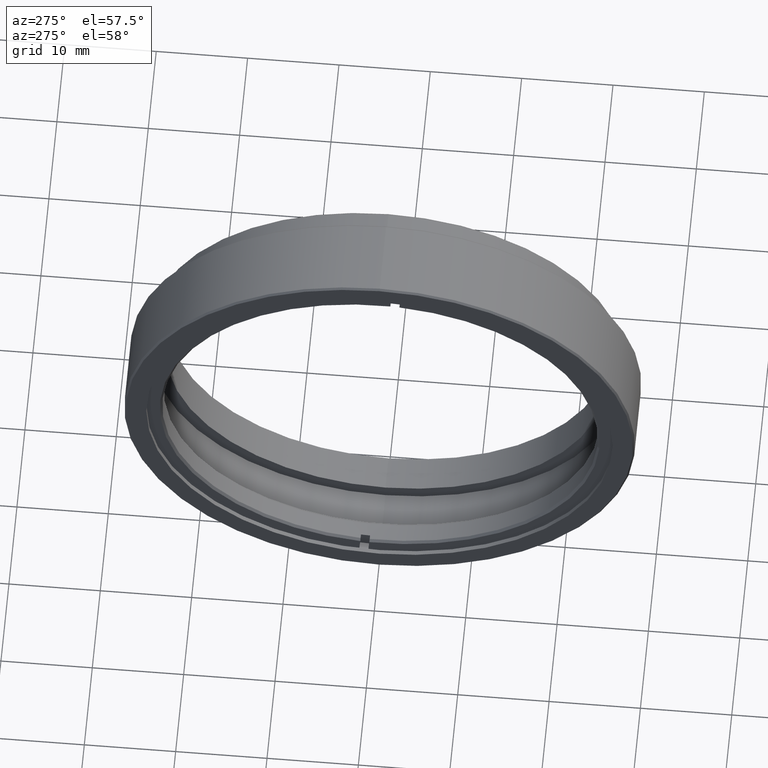
[diagram: clean part render]
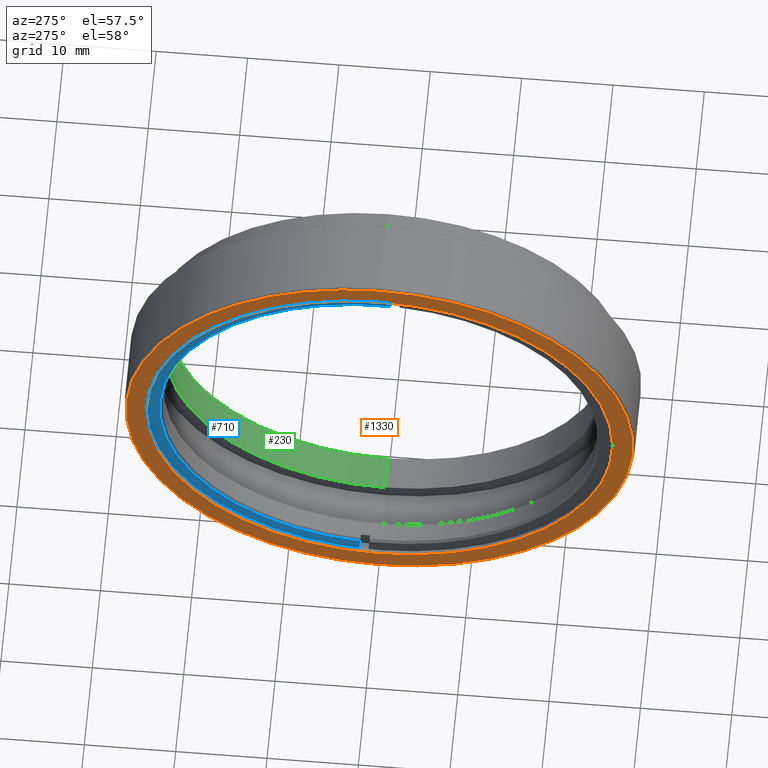
[diagram: same view with three faces highlighted in distinct colors, each labeled with its STEP entity id]
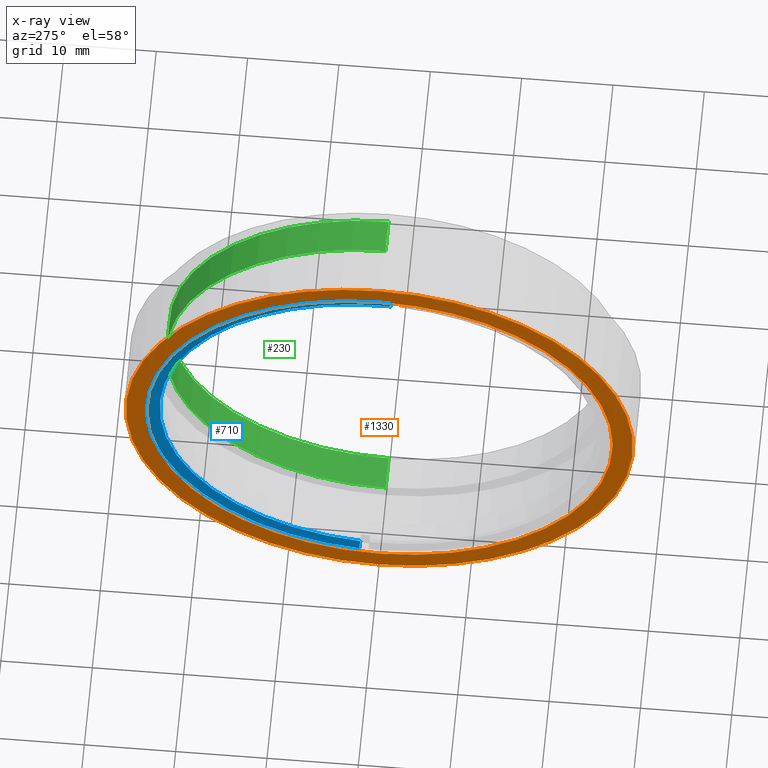
[diagram: x-ray of the same camera — body ghosted, the three highlighted faces saturated]
A machine part, auxiliary view with three faces highlighted in distinct colors.
The next image is the same camera in x-ray (body ghosted, the three faces saturated) — at least one of them is partly hidden behind the body in this view.
Their STEP definitions:

[orange] entity #1330 — the highlighted planar face has unit normal (-1, 0, 0).
#22 = AXIS2_PLACEMENT_3D ( 'NONE', #982, #748, #92 ) ;
#86 = CARTESIAN_POINT ( 'NONE',  ( -4.874000000000017430, -20.10857142857141611, 27.74999999999998579 ) ) ;
#92 = DIRECTION ( 'NONE',  ( 0.000000000000000000, 0.000000000000000000, 1.000000000000000000 ) ) ;
#105 = AXIS2_PLACEMENT_3D ( 'NONE', #752, #744, #876 ) ;
#167 = ORIENTED_EDGE ( 'NONE', *, *, #559, .F. ) ;
#187 = CIRCLE ( 'NONE', #105, 25.52700000000000102 ) ;
#240 = DIRECTION ( 'NONE',  ( -1.000000000000000000, 0.000000000000000000, 0.000000000000000000 ) ) ;
#250 = CARTESIAN_POINT ( 'NONE',  ( -4.874000000000017430, -20.10857142857141966, 0.000000000000000000 ) ) ;
#267 = AXIS2_PLACEMENT_3D ( 'NONE', #250, #1523, #1006 ) ;
#299 = ORIENTED_EDGE ( 'NONE', *, *, #1035, .T. ) ;
#351 = EDGE_CURVE ( 'NONE', #1170, #1253, #1645, .T. ) ;
#393 = CIRCLE ( 'NONE', #22, 27.74999999999998579 ) ;
#423 = AXIS2_PLACEMENT_3D ( 'NONE', #1656, #994, #746 ) ;
#502 = PLANE ( 'NONE',  #423 ) ;
#559 = EDGE_CURVE ( 'NONE', #1297, #615, #187, .T. ) ;
#615 = VERTEX_POINT ( 'NONE', #873 ) ;
#625 = AXIS2_PLACEMENT_3D ( 'NONE', #1359, #240, #1114 ) ;
#744 = DIRECTION ( 'NONE',  ( -1.000000000000000000, 0.000000000000000000, 0.000000000000000000 ) ) ;
#746 = DIRECTION ( 'NONE',  ( 0.000000000000000000, 0.000000000000000000, 1.000000000000000000 ) ) ;
#748 = DIRECTION ( 'NONE',  ( -1.000000000000000000, 0.000000000000000000, 0.000000000000000000 ) ) ;
#752 = CARTESIAN_POINT ( 'NONE',  ( -4.874000000000017430, -20.10857142857141966, 0.000000000000000000 ) ) ;
#845 = CARTESIAN_POINT ( 'NONE',  ( -4.874000000000017430, -20.10857142857141611, 25.52700000000000102 ) ) ;
#849 = EDGE_LOOP ( 'NONE', ( #1301, #167 ) ) ;
#873 = CARTESIAN_POINT ( 'NONE',  ( -4.874000000000017430, -20.10857142857141966, -25.52700000000000102 ) ) ;
#876 = DIRECTION ( 'NONE',  ( 0.000000000000000000, 0.000000000000000000, 1.000000000000000000 ) ) ;
#982 = CARTESIAN_POINT ( 'NONE',  ( -4.874000000000017430, -20.10857142857141966, 0.000000000000000000 ) ) ;
#994 = DIRECTION ( 'NONE',  ( -1.000000000000000000, 0.000000000000000000, 0.000000000000000000 ) ) ;
#1006 = DIRECTION ( 'NONE',  ( 0.000000000000000000, 0.000000000000000000, 1.000000000000000000 ) ) ;
#1035 = EDGE_CURVE ( 'NONE', #1253, #1170, #393, .T. ) ;
#1071 = CIRCLE ( 'NONE', #267, 25.52700000000000102 ) ;
#1086 = CARTESIAN_POINT ( 'NONE',  ( -4.874000000000017430, -20.10857142857141966, -27.74999999999998579 ) ) ;
#1093 = ORIENTED_EDGE ( 'NONE', *, *, #351, .T. ) ;
#1114 = DIRECTION ( 'NONE',  ( 0.000000000000000000, 0.000000000000000000, 1.000000000000000000 ) ) ;
#1125 = FACE_OUTER_BOUND ( 'NONE', #1230, .T. ) ;
#1170 = VERTEX_POINT ( 'NONE', #1086 ) ;
#1230 = EDGE_LOOP ( 'NONE', ( #1093, #299 ) ) ;
#1253 = VERTEX_POINT ( 'NONE', #86 ) ;
#1297 = VERTEX_POINT ( 'NONE', #845 ) ;
#1301 = ORIENTED_EDGE ( 'NONE', *, *, #1633, .F. ) ;
#1330 = ADVANCED_FACE ( 'NONE', ( #1125, #1390 ), #502, .T. ) ;
#1359 = CARTESIAN_POINT ( 'NONE',  ( -4.874000000000017430, -20.10857142857141966, 0.000000000000000000 ) ) ;
#1390 = FACE_BOUND ( 'NONE', #849, .T. ) ;
#1523 = DIRECTION ( 'NONE',  ( -1.000000000000000000, 0.000000000000000000, 0.000000000000000000 ) ) ;
#1633 = EDGE_CURVE ( 'NONE', #615, #1297, #1071, .T. ) ;
#1645 = CIRCLE ( 'NONE', #625, 27.74999999999998579 ) ;
#1656 = CARTESIAN_POINT ( 'NONE',  ( -4.874000000000017430, -20.10857142857141966, 0.000000000000000000 ) ) ;

[blue] entity #710 — the highlighted planar face has unit normal (-1, -0, 0).
#11 = VERTEX_POINT ( 'NONE', #407 ) ;
#97 = CARTESIAN_POINT ( 'NONE',  ( -4.402752303743446838, -26.78103892678877784, 104.7889697319580620 ) ) ;
#191 = CARTESIAN_POINT ( 'NONE',  ( -4.402752303743446838, -21.25499303746362045, 24.06721105040350395 ) ) ;
#216 = DIRECTION ( 'NONE',  ( 0.000000000000000000, 0.06829809502540006017, -0.9976649588994802587 ) ) ;
#226 = CARTESIAN_POINT ( 'NONE',  ( -4.402752303743446838, -21.35746095196394734, 25.56401191535397288 ) ) ;
#283 = VERTEX_POINT ( 'NONE', #191 ) ;
#391 = EDGE_CURVE ( 'NONE', #1493, #283, #749, .T. ) ;
#407 = CARTESIAN_POINT ( 'NONE',  ( -4.402752303743446838, -17.86201694627950687, -25.49571382032859646 ) ) ;
#409 = AXIS2_PLACEMENT_3D ( 'NONE', #1534, #903, #770 ) ;
#472 = CIRCLE ( 'NONE', #1446, 25.59450000000000713 ) ;
#519 = LINE ( 'NONE', #1017, #834 ) ;
#601 = DIRECTION ( 'NONE',  ( 1.000000000000000000, -0.000000000000000000, -0.000000000000000000 ) ) ;
#604 = DIRECTION ( 'NONE',  ( 0.000000000000000000, -0.9976649588994801476, -0.06829809502540017119 ) ) ;
#617 = ORIENTED_EDGE ( 'NONE', *, *, #756, .T. ) ;
#637 = PLANE ( 'NONE',  #409 ) ;
#639 = DIRECTION ( 'NONE',  ( 0.000000000000000000, 0.06829809502540006017, -0.9976649588994802587 ) ) ;
#696 = LINE ( 'NONE', #97, #1172 ) ;
#710 = ADVANCED_FACE ( 'NONE', ( #1108 ), #637, .T. ) ;
#749 = CIRCLE ( 'NONE', #951, 24.09450000000001069 ) ;
#756 = EDGE_CURVE ( 'NONE', #1300, #11, #472, .T. ) ;
#770 = DIRECTION ( 'NONE',  ( 0.000000000000000000, -0.9976649588994802587, -0.06829809502540019894 ) ) ;
#834 = VECTOR ( 'NONE', #639, 999.9999999999998863 ) ;
#903 = DIRECTION ( 'NONE',  ( -1.000000000000000000, -0.000000000000000000, 0.000000000000000000 ) ) ;
#904 = EDGE_LOOP ( 'NONE', ( #1138, #617, #1653, #1530 ) ) ;
#911 = DIRECTION ( 'NONE',  ( 0.000000000000000000, -0.9976649588994801476, -0.06829809502540018507 ) ) ;
#951 = AXIS2_PLACEMENT_3D ( 'NONE', #1472, #601, #604 ) ;
#1017 = CARTESIAN_POINT ( 'NONE',  ( -4.402752303743446838, -26.78103892678877784, 104.7889697319580620 ) ) ;
#1058 = DIRECTION ( 'NONE',  ( -1.000000000000000000, 0.000000000000000000, 0.000000000000000000 ) ) ;
#1108 = FACE_OUTER_BOUND ( 'NONE', #904, .T. ) ;
#1138 = ORIENTED_EDGE ( 'NONE', *, *, #1524, .F. ) ;
#1172 = VECTOR ( 'NONE', #216, 999.9999999999998863 ) ;
#1300 = VERTEX_POINT ( 'NONE', #226 ) ;
#1367 = EDGE_CURVE ( 'NONE', #1493, #11, #519, .T. ) ;
#1446 = AXIS2_PLACEMENT_3D ( 'NONE', #1554, #1058, #911 ) ;
#1472 = CARTESIAN_POINT ( 'NONE',  ( -4.402752303743446838, -20.10857142857141966, -2.520770051028797809E-15 ) ) ;
#1493 = VERTEX_POINT ( 'NONE', #1624 ) ;
#1524 = EDGE_CURVE ( 'NONE', #1300, #283, #696, .T. ) ;
#1530 = ORIENTED_EDGE ( 'NONE', *, *, #391, .T. ) ;
#1534 = CARTESIAN_POINT ( 'NONE',  ( -4.402752303743446838, -20.10857142857141966, -2.520770051028797809E-15 ) ) ;
#1554 = CARTESIAN_POINT ( 'NONE',  ( -4.402752303743446838, -20.10857142857141966, -2.520770051028797809E-15 ) ) ;
#1624 = CARTESIAN_POINT ( 'NONE',  ( -4.402752303743446838, -17.96448486077984086, -23.99891295537812397 ) ) ;
#1653 = ORIENTED_EDGE ( 'NONE', *, *, #1367, .F. ) ;

[green] entity #230 — the highlighted cylindrical surface (partial cylindrical patch) has radius 24 mm, axis along (1, -0, -0).
#26 = VERTEX_POINT ( 'NONE', #543 ) ;
#65 = CARTESIAN_POINT ( 'NONE',  ( -4.874000000000018318, -20.10857142857141611, 24.00000000000000355 ) ) ;
#120 = CARTESIAN_POINT ( 'NONE',  ( 2.725999999999982659, -20.10857142857141966, 0.000000000000000000 ) ) ;
#121 = ORIENTED_EDGE ( 'NONE', *, *, #1457, .T. ) ;
#129 = DIRECTION ( 'NONE',  ( 0.000000000000000000, 0.000000000000000000, -1.000000000000000000 ) ) ;
#152 = DIRECTION ( 'NONE',  ( 1.000000000000000000, 0.000000000000000000, 0.000000000000000000 ) ) ;
#230 = ADVANCED_FACE ( 'NONE', ( #1294 ), #1131, .F. ) ;
#342 = DIRECTION ( 'NONE',  ( 1.000000000000000000, -0.000000000000000000, -0.000000000000000000 ) ) ;
#442 = CARTESIAN_POINT ( 'NONE',  ( -4.874000000000018318, -20.10857142857141966, -24.00000000000000355 ) ) ;
#452 = CARTESIAN_POINT ( 'NONE',  ( -4.874000000000018318, -20.10857142857141966, 0.000000000000000000 ) ) ;
#460 = ORIENTED_EDGE ( 'NONE', *, *, #924, .F. ) ;
#501 = EDGE_CURVE ( 'NONE', #26, #1118, #1200, .T. ) ;
#535 = CARTESIAN_POINT ( 'NONE',  ( 6.525999999999982926, -20.10857142857141611, 24.00000000000000355 ) ) ;
#536 = VERTEX_POINT ( 'NONE', #884 ) ;
#543 = CARTESIAN_POINT ( 'NONE',  ( 2.725999999999982659, -20.10857142857141966, -24.00000000000000355 ) ) ;
#573 = EDGE_LOOP ( 'NONE', ( #460, #1560, #121, #598 ) ) ;
#575 = AXIS2_PLACEMENT_3D ( 'NONE', #452, #1077, #1589 ) ;
#586 = VECTOR ( 'NONE', #342, 1000.000000000000000 ) ;
#598 = ORIENTED_EDGE ( 'NONE', *, *, #662, .T. ) ;
#641 = CIRCLE ( 'NONE', #714, 24.00000000000000355 ) ;
#662 = EDGE_CURVE ( 'NONE', #536, #692, #641, .T. ) ;
#692 = VERTEX_POINT ( 'NONE', #535 ) ;
#714 = AXIS2_PLACEMENT_3D ( 'NONE', #893, #152, #129 ) ;
#724 = LINE ( 'NONE', #442, #1499 ) ;
#781 = AXIS2_PLACEMENT_3D ( 'NONE', #120, #881, #1263 ) ;
#863 = CARTESIAN_POINT ( 'NONE',  ( 2.725999999999982659, -20.10857142857141611, 24.00000000000000355 ) ) ;
#881 = DIRECTION ( 'NONE',  ( 1.000000000000000000, 0.000000000000000000, 0.000000000000000000 ) ) ;
#884 = CARTESIAN_POINT ( 'NONE',  ( 6.525999999999982926, -20.10857142857141966, -24.00000000000000355 ) ) ;
#893 = CARTESIAN_POINT ( 'NONE',  ( 6.525999999999982926, -20.10857142857141966, 0.000000000000000000 ) ) ;
#924 = EDGE_CURVE ( 'NONE', #1118, #692, #1293, .T. ) ;
#939 = DIRECTION ( 'NONE',  ( 1.000000000000000000, -0.000000000000000000, -0.000000000000000000 ) ) ;
#1077 = DIRECTION ( 'NONE',  ( 1.000000000000000000, -0.000000000000000000, -0.000000000000000000 ) ) ;
#1118 = VERTEX_POINT ( 'NONE', #863 ) ;
#1131 = CYLINDRICAL_SURFACE ( 'NONE', #575, 24.00000000000000355 ) ;
#1200 = CIRCLE ( 'NONE', #781, 24.00000000000000355 ) ;
#1263 = DIRECTION ( 'NONE',  ( 0.000000000000000000, 0.000000000000000000, -1.000000000000000000 ) ) ;
#1293 = LINE ( 'NONE', #65, #586 ) ;
#1294 = FACE_OUTER_BOUND ( 'NONE', #573, .T. ) ;
#1457 = EDGE_CURVE ( 'NONE', #26, #536, #724, .T. ) ;
#1499 = VECTOR ( 'NONE', #939, 1000.000000000000000 ) ;
#1560 = ORIENTED_EDGE ( 'NONE', *, *, #501, .F. ) ;
#1589 = DIRECTION ( 'NONE',  ( 0.000000000000000000, 0.000000000000000000, -1.000000000000000000 ) ) ;